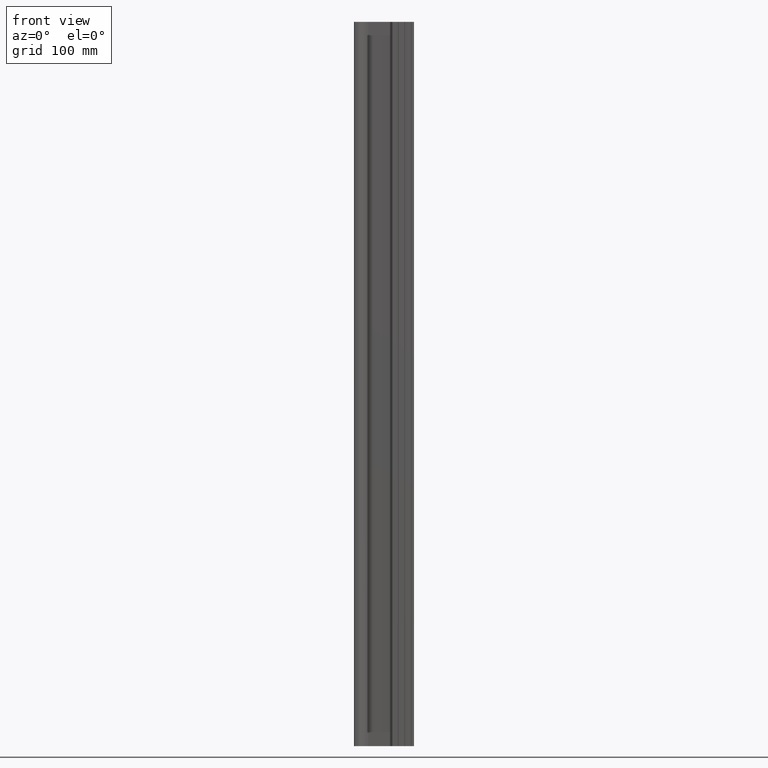
[diagram: clean part render]
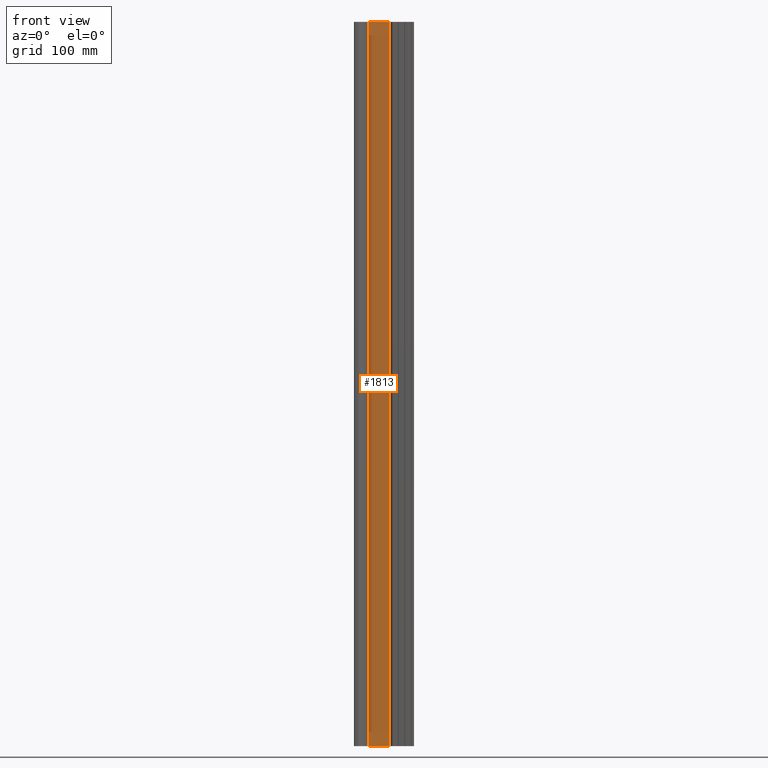
[diagram: same view with one face highlighted and labeled with its STEP entity id]
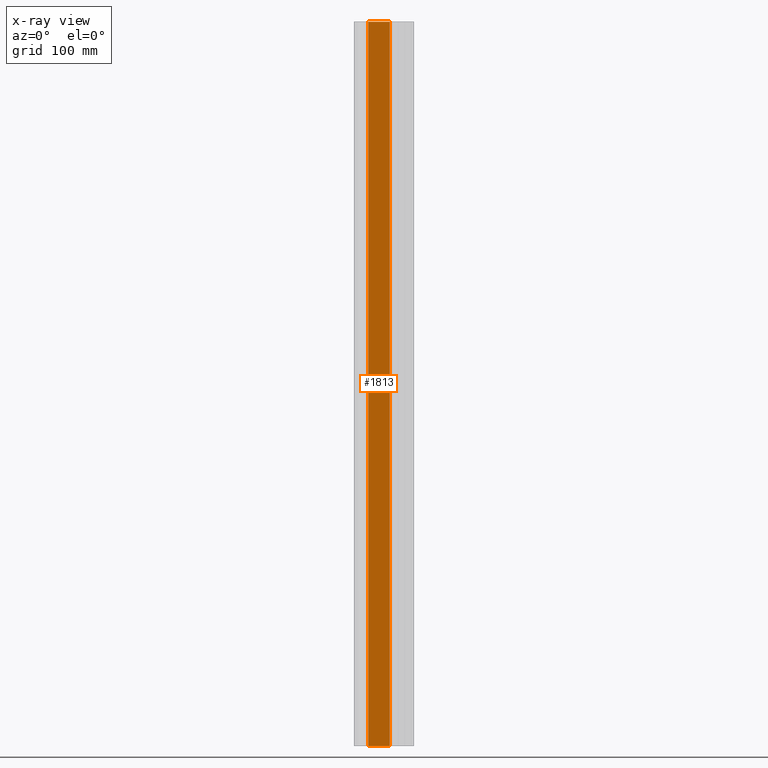
[diagram: x-ray of the same camera — body ghosted, the highlighted face saturated]
A machine part, front view. The second image highlights one B-rep face of the part: STEP entity #1813.
The next image is the same camera in x-ray: the body ghosted, the highlighted face saturated — about 0% of this face is hidden behind the body in this view.
In plain terms, the highlighted planar face has unit normal (0, 1, -0).
Its self-contained STEP definition (entity closure, byte-faithful):
#83 = CARTESIAN_POINT ( 'NONE',  ( 20.00000000000001100, -2.999999999999999100, 500.0000000000000000 ) ) ;
#94 = CARTESIAN_POINT ( 'NONE',  ( 20.00000000000001100, -2.999999999999999100, 500.0000000000000000 ) ) ;
#237 = DIRECTION ( 'NONE',  ( -0.0000000000000000000, -0.0000000000000000000, -1.000000000000000000 ) ) ;
#257 = DIRECTION ( 'NONE',  ( -1.000000000000000000, 4.459967285775942500E-017, 0.0000000000000000000 ) ) ;
#370 = VECTOR ( 'NONE', #237, 1000.000000000000000 ) ;
#381 = CARTESIAN_POINT ( 'NONE',  ( 49.17157287525375900, -3.000000000000000400, 500.0000000000000000 ) ) ;
#481 = EDGE_LOOP ( 'NONE', ( #1358, #629, #1792, #1442 ) ) ;
#599 = AXIS2_PLACEMENT_3D ( 'NONE', #94, #1184, #257 ) ;
#629 = ORIENTED_EDGE ( 'NONE', *, *, #927, .F. ) ;
#687 = FACE_OUTER_BOUND ( 'NONE', #481, .T. ) ;
#706 = VERTEX_POINT ( 'NONE', #381 ) ;
#714 = CARTESIAN_POINT ( 'NONE',  ( 20.00000000000001100, -2.999999999999999100, -500.0000000000000000 ) ) ;
#766 = VERTEX_POINT ( 'NONE', #1884 ) ;
#823 = LINE ( 'NONE', #83, #370 ) ;
#860 = DIRECTION ( 'NONE',  ( 1.000000000000000000, -4.459967285775942500E-017, 0.0000000000000000000 ) ) ;
#883 = CARTESIAN_POINT ( 'NONE',  ( 20.00000000000001100, -2.999999999999999100, -500.0000000000000000 ) ) ;
#918 = VECTOR ( 'NONE', #1054, 1000.000000000000000 ) ;
#927 = EDGE_CURVE ( 'NONE', #706, #1992, #1371, .T. ) ;
#1054 = DIRECTION ( 'NONE',  ( -0.0000000000000000000, -0.0000000000000000000, -1.000000000000000000 ) ) ;
#1087 = CARTESIAN_POINT ( 'NONE',  ( 49.17157287525375900, -3.000000000000000400, -500.0000000000000000 ) ) ;
#1134 = LINE ( 'NONE', #1211, #2020 ) ;
#1184 = DIRECTION ( 'NONE',  ( 4.459967285775942500E-017, 1.000000000000000000, -0.0000000000000000000 ) ) ;
#1211 = CARTESIAN_POINT ( 'NONE',  ( 20.00000000000001100, -2.999999999999999100, 500.0000000000000000 ) ) ;
#1252 = EDGE_CURVE ( 'NONE', #1908, #1992, #1622, .T. ) ;
#1358 = ORIENTED_EDGE ( 'NONE', *, *, #1252, .T. ) ;
#1371 = LINE ( 'NONE', #1408, #918 ) ;
#1392 = DIRECTION ( 'NONE',  ( 1.000000000000000000, -4.459967285775942500E-017, 0.0000000000000000000 ) ) ;
#1408 = CARTESIAN_POINT ( 'NONE',  ( 49.17157287525375900, -3.000000000000000400, 500.0000000000000000 ) ) ;
#1442 = ORIENTED_EDGE ( 'NONE', *, *, #1719, .T. ) ;
#1551 = EDGE_CURVE ( 'NONE', #766, #706, #1134, .T. ) ;
#1566 = VECTOR ( 'NONE', #860, 1000.000000000000000 ) ;
#1622 = LINE ( 'NONE', #714, #1566 ) ;
#1719 = EDGE_CURVE ( 'NONE', #766, #1908, #823, .T. ) ;
#1792 = ORIENTED_EDGE ( 'NONE', *, *, #1551, .F. ) ;
#1813 = ADVANCED_FACE ( 'NONE', ( #687 ), #1890, .F. ) ;
#1884 = CARTESIAN_POINT ( 'NONE',  ( 20.00000000000001100, -2.999999999999999100, 500.0000000000000000 ) ) ;
#1890 = PLANE ( 'NONE',  #599 ) ;
#1908 = VERTEX_POINT ( 'NONE', #883 ) ;
#1992 = VERTEX_POINT ( 'NONE', #1087 ) ;
#2020 = VECTOR ( 'NONE', #1392, 1000.000000000000000 ) ;